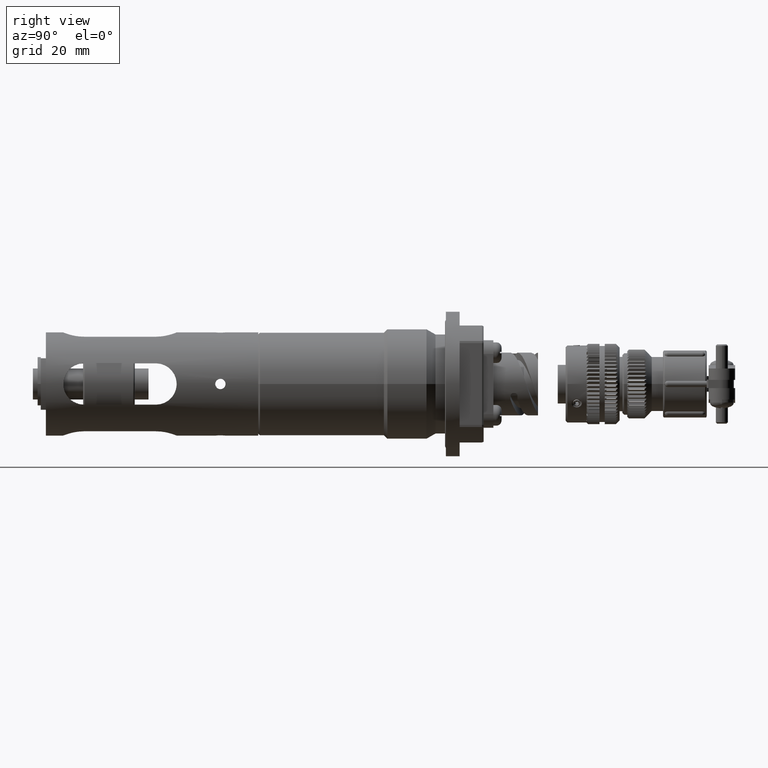
[diagram: clean part render]
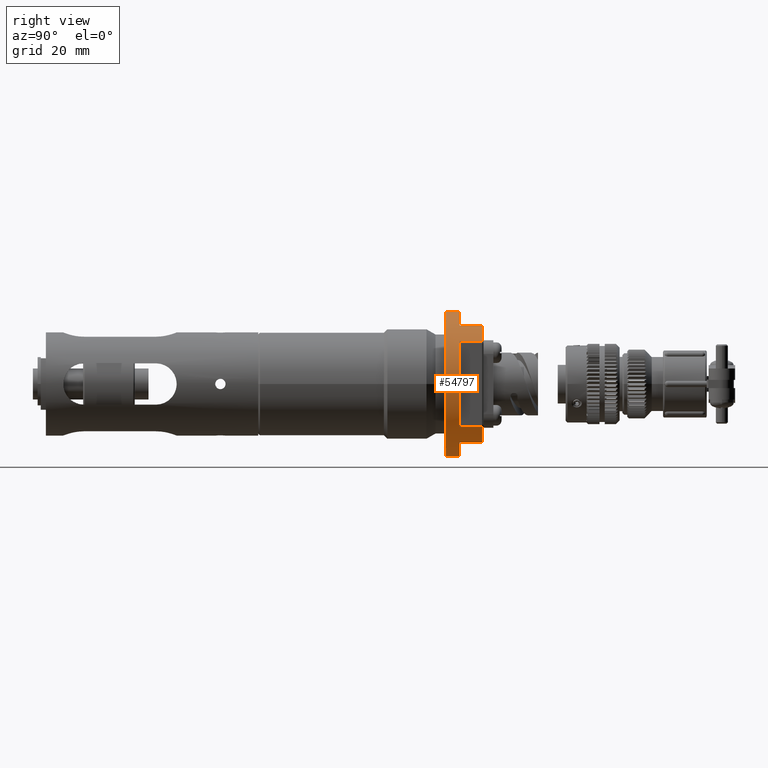
[diagram: same view with one face highlighted and labeled with its STEP entity id]
A machine part, right view. The second image highlights one B-rep face of the part: STEP entity #54797.
In plain terms, the highlighted cylindrical surface (partial cylindrical patch) has radius 21 mm, axis along (-0, -1, -0).
Its self-contained STEP definition (entity closure, byte-faithful):
#559 = CARTESIAN_POINT ( 'NONE',  ( 2.571758278209441661E-15, 0.0000000000000000000, 21.00000000000000000 ) ) ;
#728 = EDGE_CURVE ( 'NONE', #38905, #16629, #22258, .T. ) ;
#813 = AXIS2_PLACEMENT_3D ( 'NONE', #63210, #16500, #41461 ) ;
#2875 = VERTEX_POINT ( 'NONE', #40175 ) ;
#3011 = EDGE_CURVE ( 'NONE', #40829, #20476, #62956, .T. ) ;
#3243 = EDGE_CURVE ( 'NONE', #22095, #15858, #61590, .T. ) ;
#3494 = VECTOR ( 'NONE', #27386, 1000.000000000000000 ) ;
#4209 = ORIENTED_EDGE ( 'NONE', *, *, #35556, .T. ) ;
#4917 = EDGE_LOOP ( 'NONE', ( #10492, #54445, #67979, #12957, #48997, #40472, #34694, #23615, #27087, #4209, #53039, #8865 ) ) ;
#4958 = LINE ( 'NONE', #10495, #7924 ) ;
#6821 = AXIS2_PLACEMENT_3D ( 'NONE', #48417, #16893, #49420 ) ;
#7924 = VECTOR ( 'NONE', #31960, 1000.000000000000000 ) ;
#8551 = CARTESIAN_POINT ( 'NONE',  ( 0.0000000000000000000, 3.999999999999999112, 0.0000000000000000000 ) ) ;
#8841 = CYLINDRICAL_SURFACE ( 'NONE', #29856, 21.00000000000000000 ) ;
#8865 = ORIENTED_EDGE ( 'NONE', *, *, #65233, .T. ) ;
#8890 = DIRECTION ( 'NONE',  ( -0.0000000000000000000, 1.000000000000000000, 0.0000000000000000000 ) ) ;
#10492 = ORIENTED_EDGE ( 'NONE', *, *, #728, .F. ) ;
#10495 = CARTESIAN_POINT ( 'NONE',  ( 0.0000000000000000000, 11.00000000000000000, -21.00000000000000000 ) ) ;
#10763 = EDGE_CURVE ( 'NONE', #47025, #15858, #4958, .T. ) ;
#12002 = CARTESIAN_POINT ( 'NONE',  ( 12.48856429476957075, 3.999999999999999112, -16.88300215765568879 ) ) ;
#12957 = ORIENTED_EDGE ( 'NONE', *, *, #10763, .F. ) ;
#13513 = DIRECTION ( 'NONE',  ( -0.0000000000000000000, -1.000000000000000000, -0.0000000000000000000 ) ) ;
#13777 = AXIS2_PLACEMENT_3D ( 'NONE', #38315, #22703, #43820 ) ;
#15036 = CARTESIAN_POINT ( 'NONE',  ( 0.0000000000000000000, 0.0000000000000000000, -21.00000000000000000 ) ) ;
#15858 = VERTEX_POINT ( 'NONE', #15036 ) ;
#16500 = DIRECTION ( 'NONE',  ( 0.0000000000000000000, 1.000000000000000000, 0.0000000000000000000 ) ) ;
#16629 = VERTEX_POINT ( 'NONE', #44496 ) ;
#16893 = DIRECTION ( 'NONE',  ( -0.0000000000000000000, 1.000000000000000000, 0.0000000000000000000 ) ) ;
#17043 = EDGE_CURVE ( 'NONE', #20476, #54050, #50057, .T. ) ;
#17268 = VECTOR ( 'NONE', #13513, 1000.000000000000000 ) ;
#19031 = CARTESIAN_POINT ( 'NONE',  ( 16.88300215765568524, 10.49999999999998579, -12.48856429476957608 ) ) ;
#19198 = FACE_OUTER_BOUND ( 'NONE', #4917, .T. ) ;
#20014 = CARTESIAN_POINT ( 'NONE',  ( 16.88300215765569590, 11.00000000000000000, 12.48856429476955832 ) ) ;
#20476 = VERTEX_POINT ( 'NONE', #33077 ) ;
#21308 = CIRCLE ( 'NONE', #59970, 21.00000000000000000 ) ;
#22095 = VERTEX_POINT ( 'NONE', #559 ) ;
#22258 = CIRCLE ( 'NONE', #6821, 21.00000000000000000 ) ;
#22703 = DIRECTION ( 'NONE',  ( -0.0000000000000000000, 1.000000000000000000, 0.0000000000000000000 ) ) ;
#23185 = DIRECTION ( 'NONE',  ( 0.0000000000000000000, 0.0000000000000000000, 1.000000000000000000 ) ) ;
#23398 = VECTOR ( 'NONE', #62903, 1000.000000000000000 ) ;
#23416 = EDGE_CURVE ( 'NONE', #40829, #47025, #21308, .T. ) ;
#23471 = CARTESIAN_POINT ( 'NONE',  ( 16.88300215765569590, 10.49999999999998579, 12.48856429476955832 ) ) ;
#23615 = ORIENTED_EDGE ( 'NONE', *, *, #29293, .T. ) ;
#24329 = VERTEX_POINT ( 'NONE', #31339 ) ;
#26245 = CARTESIAN_POINT ( 'NONE',  ( 16.88300215765568524, 11.00000000000000000, -12.48856429476957608 ) ) ;
#26373 = CARTESIAN_POINT ( 'NONE',  ( 12.48856429476957608, 11.00000000000000000, 16.88300215765568879 ) ) ;
#27087 = ORIENTED_EDGE ( 'NONE', *, *, #52105, .F. ) ;
#27386 = DIRECTION ( 'NONE',  ( -0.0000000000000000000, -1.000000000000000000, -0.0000000000000000000 ) ) ;
#27468 = DIRECTION ( 'NONE',  ( 0.0000000000000000000, 0.0000000000000000000, -1.000000000000000000 ) ) ;
#28042 = DIRECTION ( 'NONE',  ( 0.0000000000000000000, -1.000000000000000000, 0.0000000000000000000 ) ) ;
#29116 = CARTESIAN_POINT ( 'NONE',  ( 2.571758278209441661E-15, 11.00000000000000000, 21.00000000000000000 ) ) ;
#29293 = EDGE_CURVE ( 'NONE', #54050, #24329, #58059, .T. ) ;
#29856 = AXIS2_PLACEMENT_3D ( 'NONE', #42702, #63770, #27468 ) ;
#29918 = EDGE_CURVE ( 'NONE', #32108, #2875, #45651, .T. ) ;
#31339 = CARTESIAN_POINT ( 'NONE',  ( 16.88300215765568524, 3.999999999999999112, -12.48856429476957608 ) ) ;
#31960 = DIRECTION ( 'NONE',  ( -0.0000000000000000000, -1.000000000000000000, -0.0000000000000000000 ) ) ;
#32108 = VERTEX_POINT ( 'NONE', #23471 ) ;
#33077 = CARTESIAN_POINT ( 'NONE',  ( 12.48856429476957075, 10.49999999999998579, -16.88300215765568879 ) ) ;
#34694 = ORIENTED_EDGE ( 'NONE', *, *, #17043, .T. ) ;
#35556 = EDGE_CURVE ( 'NONE', #39971, #32108, #35611, .T. ) ;
#35611 = LINE ( 'NONE', #20014, #65900 ) ;
#38315 = CARTESIAN_POINT ( 'NONE',  ( 0.0000000000000000000, 3.999999999999999112, 0.0000000000000000000 ) ) ;
#38778 = CARTESIAN_POINT ( 'NONE',  ( 0.0000000000000000000, 10.49999999999998579, 0.0000000000000000000 ) ) ;
#38841 = LINE ( 'NONE', #29116, #17268 ) ;
#38905 = VERTEX_POINT ( 'NONE', #48934 ) ;
#39971 = VERTEX_POINT ( 'NONE', #57524 ) ;
#40175 = CARTESIAN_POINT ( 'NONE',  ( 12.48856429476957608, 10.49999999999998579, 16.88300215765568879 ) ) ;
#40370 = DIRECTION ( 'NONE',  ( 0.0000000000000000000, 0.0000000000000000000, 1.000000000000000000 ) ) ;
#40472 = ORIENTED_EDGE ( 'NONE', *, *, #3011, .T. ) ;
#40829 = VERTEX_POINT ( 'NONE', #12002 ) ;
#41461 = DIRECTION ( 'NONE',  ( 0.0000000000000000000, 0.0000000000000000000, 1.000000000000000000 ) ) ;
#42702 = CARTESIAN_POINT ( 'NONE',  ( 0.0000000000000000000, 11.00000000000000000, 0.0000000000000000000 ) ) ;
#43820 = DIRECTION ( 'NONE',  ( 0.0000000000000000000, 0.0000000000000000000, 1.000000000000000000 ) ) ;
#44496 = CARTESIAN_POINT ( 'NONE',  ( 12.48856429476957608, 3.999999999999999112, 16.88300215765568879 ) ) ;
#45651 = CIRCLE ( 'NONE', #53335, 21.00000000000000000 ) ;
#46385 = DIRECTION ( 'NONE',  ( 0.0000000000000000000, 0.0000000000000000000, 1.000000000000000000 ) ) ;
#47025 = VERTEX_POINT ( 'NONE', #58460 ) ;
#48088 = CARTESIAN_POINT ( 'NONE',  ( 12.48856429476957075, 11.00000000000000000, -16.88300215765568879 ) ) ;
#48417 = CARTESIAN_POINT ( 'NONE',  ( 0.0000000000000000000, 3.999999999999999112, 0.0000000000000000000 ) ) ;
#48934 = CARTESIAN_POINT ( 'NONE',  ( 2.571758278209441661E-15, 3.999999999999999112, 21.00000000000000000 ) ) ;
#48997 = ORIENTED_EDGE ( 'NONE', *, *, #23416, .F. ) ;
#49420 = DIRECTION ( 'NONE',  ( 0.0000000000000000000, 0.0000000000000000000, 1.000000000000000000 ) ) ;
#50057 = CIRCLE ( 'NONE', #53375, 21.00000000000000000 ) ;
#51320 = CIRCLE ( 'NONE', #13777, 21.00000000000000000 ) ;
#51876 = DIRECTION ( 'NONE',  ( 0.0000000000000000000, -1.000000000000000000, 0.0000000000000000000 ) ) ;
#52105 = EDGE_CURVE ( 'NONE', #39971, #24329, #51320, .T. ) ;
#53039 = ORIENTED_EDGE ( 'NONE', *, *, #29918, .T. ) ;
#53335 = AXIS2_PLACEMENT_3D ( 'NONE', #38778, #28042, #23185 ) ;
#53375 = AXIS2_PLACEMENT_3D ( 'NONE', #63277, #51876, #46385 ) ;
#54050 = VERTEX_POINT ( 'NONE', #19031 ) ;
#54445 = ORIENTED_EDGE ( 'NONE', *, *, #60924, .T. ) ;
#54797 = ADVANCED_FACE ( 'NONE', ( #19198 ), #8841, .T. ) ;
#56013 = VECTOR ( 'NONE', #63966, 1000.000000000000000 ) ;
#57524 = CARTESIAN_POINT ( 'NONE',  ( 16.88300215765569945, 3.999999999999999112, 12.48856429476956009 ) ) ;
#58059 = LINE ( 'NONE', #26245, #23398 ) ;
#58460 = CARTESIAN_POINT ( 'NONE',  ( 0.0000000000000000000, 3.999999999999999112, -21.00000000000000000 ) ) ;
#59970 = AXIS2_PLACEMENT_3D ( 'NONE', #8551, #8890, #40370 ) ;
#60924 = EDGE_CURVE ( 'NONE', #38905, #22095, #38841, .T. ) ;
#61590 = CIRCLE ( 'NONE', #813, 21.00000000000000000 ) ;
#62539 = DIRECTION ( 'NONE',  ( 0.0000000000000000000, 1.000000000000000000, 0.0000000000000000000 ) ) ;
#62903 = DIRECTION ( 'NONE',  ( -0.0000000000000000000, -1.000000000000000000, -0.0000000000000000000 ) ) ;
#62956 = LINE ( 'NONE', #48088, #56013 ) ;
#63210 = CARTESIAN_POINT ( 'NONE',  ( 0.0000000000000000000, 0.0000000000000000000, 0.0000000000000000000 ) ) ;
#63277 = CARTESIAN_POINT ( 'NONE',  ( 0.0000000000000000000, 10.49999999999998579, 0.0000000000000000000 ) ) ;
#63770 = DIRECTION ( 'NONE',  ( -0.0000000000000000000, -1.000000000000000000, -0.0000000000000000000 ) ) ;
#63966 = DIRECTION ( 'NONE',  ( 0.0000000000000000000, 1.000000000000000000, 0.0000000000000000000 ) ) ;
#64364 = LINE ( 'NONE', #26373, #3494 ) ;
#65233 = EDGE_CURVE ( 'NONE', #2875, #16629, #64364, .T. ) ;
#65900 = VECTOR ( 'NONE', #62539, 1000.000000000000000 ) ;
#67979 = ORIENTED_EDGE ( 'NONE', *, *, #3243, .T. ) ;